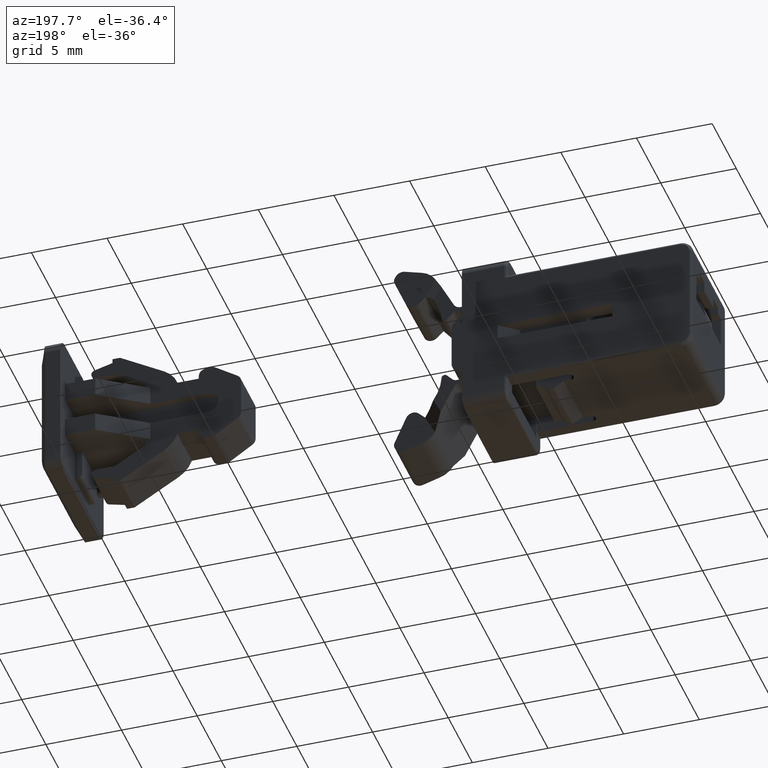
[diagram: clean part render]
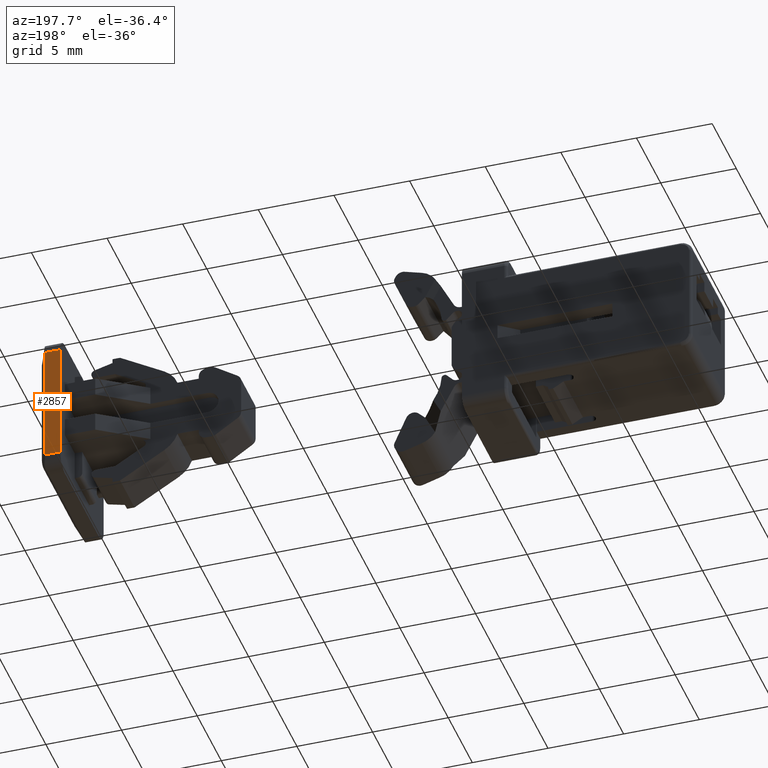
[diagram: same view with one face highlighted and labeled with its STEP entity id]
A machine part, auxiliary view. The second image highlights one B-rep face of the part: STEP entity #2857.
In plain terms, the highlighted face is a freeform B-spline surface patch.
Its self-contained STEP definition (entity closure, byte-faithful):
#332=CARTESIAN_POINT('',(26.233476587557899,4.499999999999949,4.0));
#333=VERTEX_POINT('',#332);
#386=CARTESIAN_POINT('',(27.233476587557899,4.500000000000000,4.0));
#387=VERTEX_POINT('',#386);
#401=CARTESIAN_POINT('',(26.233476587557899,4.499999999999949,4.0));
#402=CARTESIAN_POINT('',(27.233476587557899,4.500000000000000,4.0));
#403=QUASI_UNIFORM_CURVE('',1,(#401,#402),.UNSPECIFIED.,.F.,.U.);
#404=EDGE_CURVE('',#333,#387,#403,.T.);
#492=CARTESIAN_POINT('',(26.233476587557899,4.499999999999949,-3.999999999999901));
#493=VERTEX_POINT('',#492);
#507=CARTESIAN_POINT('',(27.233476587557899,4.500000000000000,-3.999999999999895));
#508=VERTEX_POINT('',#507);
#509=CARTESIAN_POINT('',(27.233476587557899,4.500000000000000,-3.999999999999895));
#510=CARTESIAN_POINT('',(26.233476587557899,4.499999999999949,-3.999999999999901));
#511=QUASI_UNIFORM_CURVE('',1,(#509,#510),.UNSPECIFIED.,.F.,.U.);
#512=EDGE_CURVE('',#508,#493,#511,.T.);
#2749=CARTESIAN_POINT('',(27.233476587557899,4.500000000000000,-3.999999999999895));
#2750=CARTESIAN_POINT('',(27.233476587557899,4.500000000000000,4.0));
#2751=QUASI_UNIFORM_CURVE('',1,(#2749,#2750),.UNSPECIFIED.,.F.,.U.);
#2752=EDGE_CURVE('',#508,#387,#2751,.T.);
#2842=CARTESIAN_POINT('',(26.183526636432511,4.500000000000000,4.399599984494443));
#2843=CARTESIAN_POINT('',(27.283426610208860,4.500000000000000,4.399599984494443));
#2844=CARTESIAN_POINT('',(26.183526636432511,4.500000000000000,-4.399600199071065));
#2845=CARTESIAN_POINT('',(27.283426610208860,4.500000000000000,-4.399600199071065));
#2846=B_SPLINE_SURFACE_WITH_KNOTS('',1,1,((#2842,#2844),(#2843,#2845)),.UNSPECIFIED.,.F.,.F.,.U.,(2,2),(2,2),(0.041708374062181,0.958291685542464),(0.0,8.799200183565507),.UNSPECIFIED.);
#2847=ORIENTED_EDGE('',*,*,#2752,.F.);
#2848=ORIENTED_EDGE('',*,*,#512,.T.);
#2849=CARTESIAN_POINT('',(26.233476587557899,4.499999999999949,-3.999999999999901));
#2850=CARTESIAN_POINT('',(26.233476587557899,4.499999999999949,4.0));
#2851=QUASI_UNIFORM_CURVE('',1,(#2849,#2850),.UNSPECIFIED.,.F.,.U.);
#2852=EDGE_CURVE('',#493,#333,#2851,.T.);
#2853=ORIENTED_EDGE('',*,*,#2852,.T.);
#2854=ORIENTED_EDGE('',*,*,#404,.T.);
#2855=EDGE_LOOP('',(#2847,#2848,#2853,#2854));
#2856=FACE_OUTER_BOUND('',#2855,.T.);
#2857=ADVANCED_FACE('',(#2856),#2846,.T.);